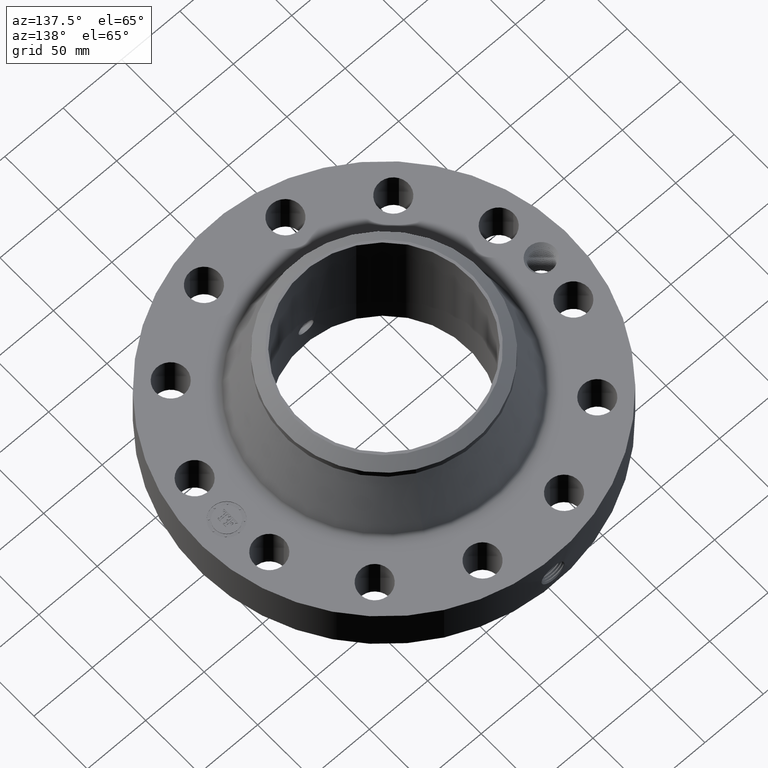
[diagram: clean part render]
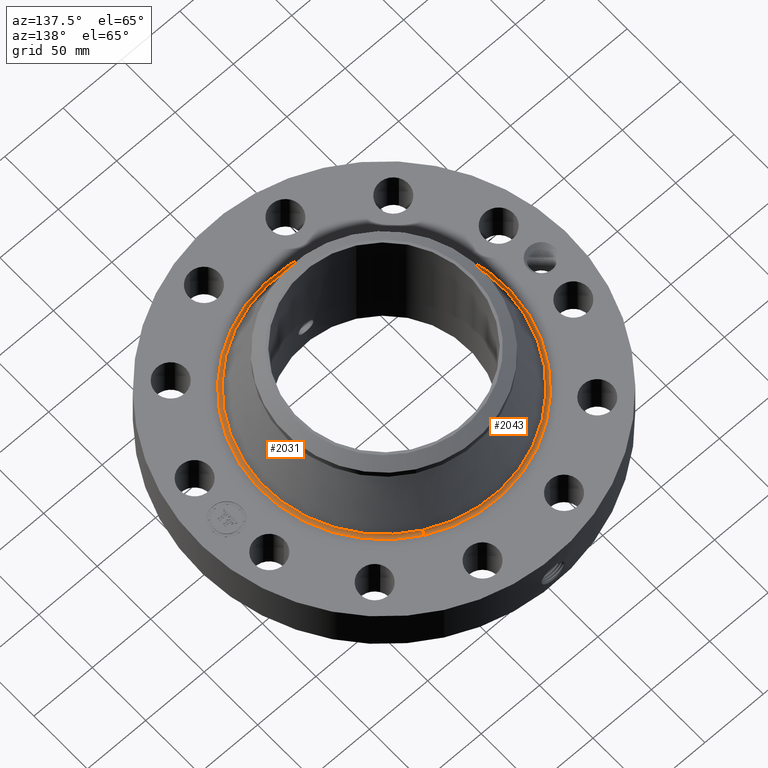
[diagram: same view with one multi-face feature highlighted, each face labeled with its STEP entity id]
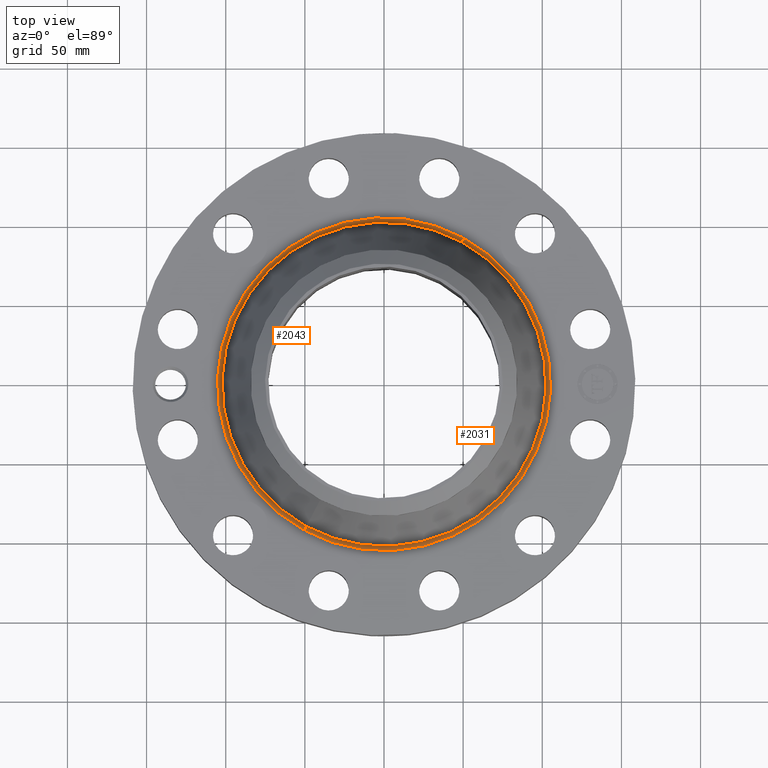
[diagram: same view with one multi-face feature highlighted, each face labeled with its STEP entity id]
A machine part, auxiliary view. The highlighted faces form ONE feature: a constant-radius fillet chain: 2 tangent blend faces with common blend radius 3.048 mm. The faces share edges in the B-rep.
A second angle (top view) of the same feature is appended — it is thin or edge-on in the first view.
Their STEP definitions:
[1] entity #2031 (Torus):
#582=AXIS2_PLACEMENT_3D('Circle Axis2P3D',#580,#581,$) ;
#2004=AXIS2_PLACEMENT_3D('Torus Axis2P3D',#2001,#2002,#2003) ;
#2008=AXIS2_PLACEMENT_3D('Circle Axis2P3D',#2006,#2007,$) ;
#2015=AXIS2_PLACEMENT_3D('Circle Axis2P3D',#2013,#2014,$) ;
#2022=AXIS2_PLACEMENT_3D('Circle Axis2P3D',#2020,#2021,$) ;
#575=CARTESIAN_POINT('Vertex',(-1.98593442529,-3.63522858162,1.87000000001)) ;
#577=CARTESIAN_POINT('Vertex',(1.98593442529,3.63522858162,1.87000000001)) ;
#580=CARTESIAN_POINT('Axis2P3D Location',(0.,0.,1.87000000001)) ;
#2001=CARTESIAN_POINT('Axis2P3D Location',(0.,0.,1.99000000001)) ;
#2006=CARTESIAN_POINT('Axis2P3D Location',(1.98593442529,3.63522858162,1.99000000001)) ;
#2010=CARTESIAN_POINT('Vertex',(1.93226031698,3.53697878539,1.94680199497)) ;
#2013=CARTESIAN_POINT('Axis2P3D Location',(0.,0.,1.94680199497)) ;
#2017=CARTESIAN_POINT('Vertex',(-1.93226031698,-3.53697878539,1.94680199497)) ;
#2020=CARTESIAN_POINT('Axis2P3D Location',(-1.98593442529,-3.63522858162,1.99000000001)) ;
#581=DIRECTION('Axis2P3D Direction',(0.,0.,-0.0393700787402)) ;
#2002=DIRECTION('Axis2P3D Direction',(0.,0.,-0.0393700787402)) ;
#2003=DIRECTION('Axis2P3D XDirection',(-0.0188750212049,-0.0345504945626,0.)) ;
#2007=DIRECTION('Axis2P3D Direction',(-0.0345504945626,0.0188750212049,0.)) ;
#2014=DIRECTION('Axis2P3D Direction',(0.,0.,-0.0393700787402)) ;
#2021=DIRECTION('Axis2P3D Direction',(0.0345504945626,-0.0188750212049,0.)) ;
#2026=ORIENTED_EDGE('',*,*,#584,.F.) ;
#2027=ORIENTED_EDGE('',*,*,#2012,.T.) ;
#2028=ORIENTED_EDGE('',*,*,#2019,.T.) ;
#2029=ORIENTED_EDGE('',*,*,#2024,.F.) ;
#2031=ADVANCED_FACE('PartBody',(#2030),#2005,.F.) ;
#583=CIRCLE('generated circle',#582,4.14232089319) ;
#2009=CIRCLE('generated circle',#2008,0.12) ;
#2016=CIRCLE('generated circle',#2015,4.03036584703) ;
#2023=CIRCLE('generated circle',#2022,0.12) ;
#2005=TOROIDAL_SURFACE('homeo Torus',#2004,4.14232089319,0.12) ;
#584=EDGE_CURVE('',#578,#576,#583,.T.) ;
#2012=EDGE_CURVE('',#578,#2011,#2009,.T.) ;
#2019=EDGE_CURVE('',#2011,#2018,#2016,.T.) ;
#2024=EDGE_CURVE('',#576,#2018,#2023,.T.) ;
#2025=EDGE_LOOP('',(#2026,#2027,#2028,#2029)) ;
#2030=FACE_OUTER_BOUND('',#2025,.T.) ;
#576=VERTEX_POINT('',#575) ;
#578=VERTEX_POINT('',#577) ;
#2011=VERTEX_POINT('',#2010) ;
#2018=VERTEX_POINT('',#2017) ;
[2] entity #2043 (Torus):
#573=AXIS2_PLACEMENT_3D('Circle Axis2P3D',#571,#572,$) ;
#2004=AXIS2_PLACEMENT_3D('Torus Axis2P3D',#2001,#2002,#2003) ;
#2008=AXIS2_PLACEMENT_3D('Circle Axis2P3D',#2006,#2007,$) ;
#2022=AXIS2_PLACEMENT_3D('Circle Axis2P3D',#2020,#2021,$) ;
#2034=AXIS2_PLACEMENT_3D('Circle Axis2P3D',#2032,#2033,$) ;
#571=CARTESIAN_POINT('Axis2P3D Location',(0.,0.,1.87000000001)) ;
#575=CARTESIAN_POINT('Vertex',(-1.98593442529,-3.63522858162,1.87000000001)) ;
#577=CARTESIAN_POINT('Vertex',(1.98593442529,3.63522858162,1.87000000001)) ;
#2001=CARTESIAN_POINT('Axis2P3D Location',(0.,0.,1.99000000001)) ;
#2006=CARTESIAN_POINT('Axis2P3D Location',(1.98593442529,3.63522858162,1.99000000001)) ;
#2010=CARTESIAN_POINT('Vertex',(1.93226031698,3.53697878539,1.94680199497)) ;
#2017=CARTESIAN_POINT('Vertex',(-1.93226031698,-3.53697878539,1.94680199497)) ;
#2020=CARTESIAN_POINT('Axis2P3D Location',(-1.98593442529,-3.63522858162,1.99000000001)) ;
#2032=CARTESIAN_POINT('Axis2P3D Location',(0.,0.,1.94680199497)) ;
#572=DIRECTION('Axis2P3D Direction',(0.,0.,-0.0393700787402)) ;
#2002=DIRECTION('Axis2P3D Direction',(0.,0.,-0.0393700787402)) ;
#2003=DIRECTION('Axis2P3D XDirection',(-0.0188750212049,-0.0345504945626,0.)) ;
#2007=DIRECTION('Axis2P3D Direction',(-0.0345504945626,0.0188750212049,0.)) ;
#2021=DIRECTION('Axis2P3D Direction',(0.0345504945626,-0.0188750212049,0.)) ;
#2033=DIRECTION('Axis2P3D Direction',(0.,0.,-0.0393700787402)) ;
#2038=ORIENTED_EDGE('',*,*,#579,.F.) ;
#2039=ORIENTED_EDGE('',*,*,#2024,.T.) ;
#2040=ORIENTED_EDGE('',*,*,#2036,.T.) ;
#2041=ORIENTED_EDGE('',*,*,#2012,.F.) ;
#2043=ADVANCED_FACE('PartBody',(#2042),#2005,.F.) ;
#574=CIRCLE('generated circle',#573,4.14232089319) ;
#2009=CIRCLE('generated circle',#2008,0.12) ;
#2023=CIRCLE('generated circle',#2022,0.12) ;
#2035=CIRCLE('generated circle',#2034,4.03036584703) ;
#2005=TOROIDAL_SURFACE('homeo Torus',#2004,4.14232089319,0.12) ;
#579=EDGE_CURVE('',#576,#578,#574,.T.) ;
#2012=EDGE_CURVE('',#578,#2011,#2009,.T.) ;
#2024=EDGE_CURVE('',#576,#2018,#2023,.T.) ;
#2036=EDGE_CURVE('',#2018,#2011,#2035,.T.) ;
#2037=EDGE_LOOP('',(#2038,#2039,#2040,#2041)) ;
#2042=FACE_OUTER_BOUND('',#2037,.T.) ;
#576=VERTEX_POINT('',#575) ;
#578=VERTEX_POINT('',#577) ;
#2011=VERTEX_POINT('',#2010) ;
#2018=VERTEX_POINT('',#2017) ;